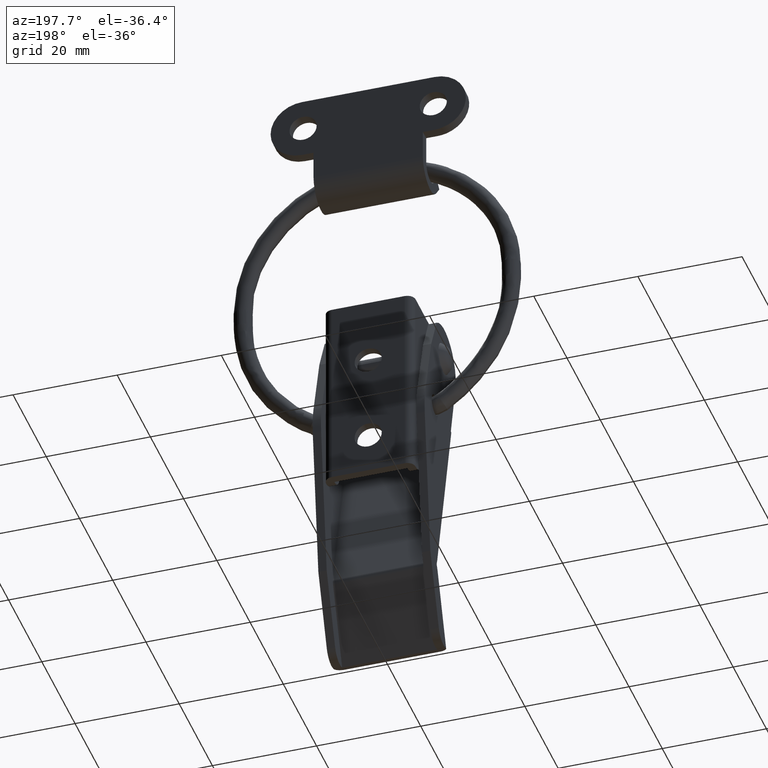
[diagram: clean part render]
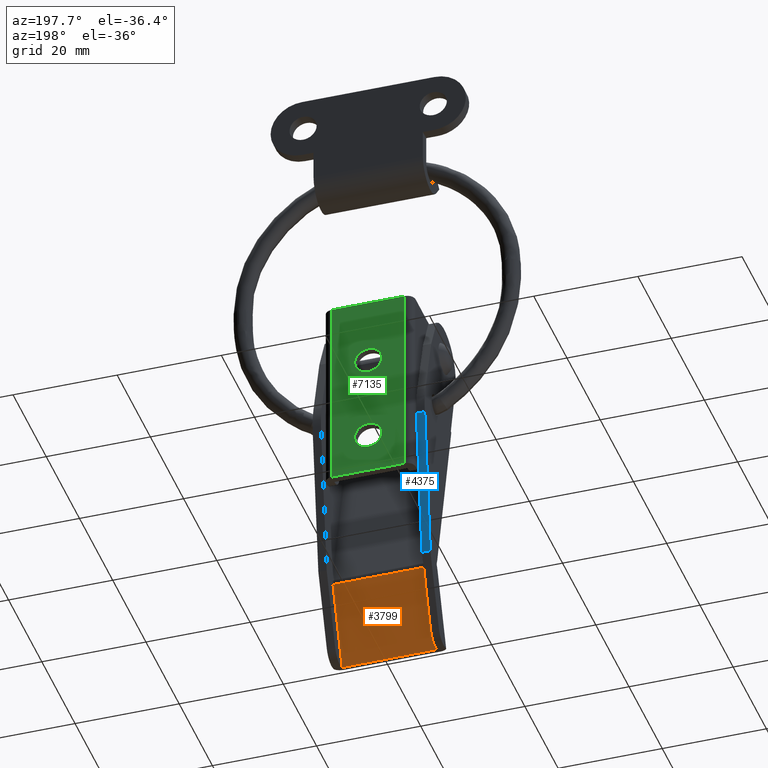
[diagram: same view with three faces highlighted in distinct colors, each labeled with its STEP entity id]
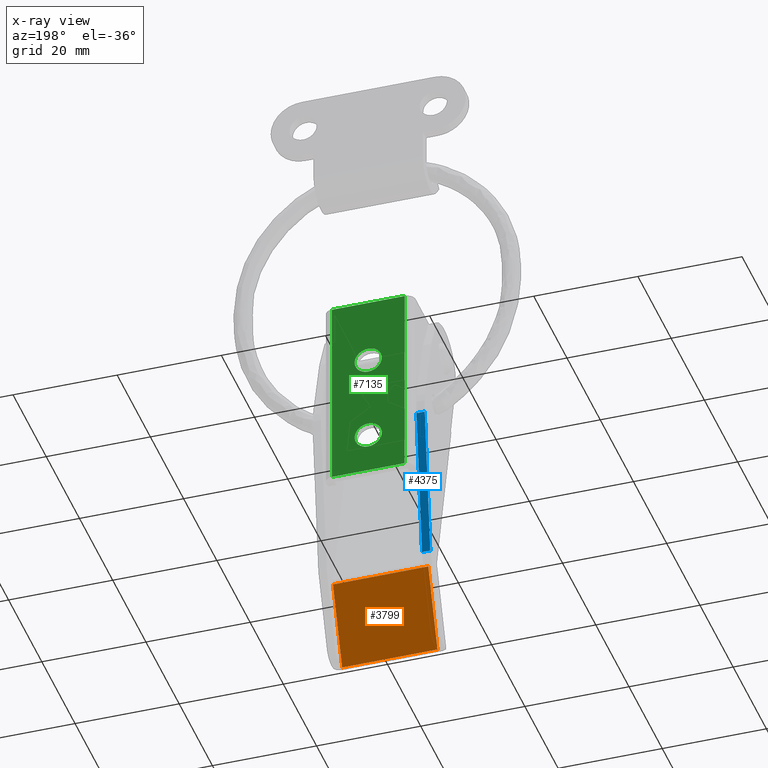
[diagram: x-ray of the same camera — body ghosted, the three highlighted faces saturated]
A machine part, auxiliary view with three faces highlighted in distinct colors.
The next image is the same camera in x-ray (body ghosted, the three faces saturated) — at least one of them is partly hidden behind the body in this view.
Their STEP definitions:

[orange] entity #3799 — the highlighted face is a freeform B-spline surface patch.
#3208=CARTESIAN_POINT('',(9.149996000000000,4.105346942063965,-49.670321217863602));
#3209=VERTEX_POINT('',#3208);
#3225=CARTESIAN_POINT('',(-9.150000000000000,4.105346942063965,-49.670321217863602));
#3226=VERTEX_POINT('',#3225);
#3227=CARTESIAN_POINT('',(-9.150000000000000,4.105346942063965,-49.670321217863602));
#3228=CARTESIAN_POINT('',(9.149996000000000,4.105346942063965,-49.670321217863602));
#3229=QUASI_UNIFORM_CURVE('',1,(#3227,#3228),.UNSPECIFIED.,.F.,.U.);
#3230=EDGE_CURVE('',#3226,#3209,#3229,.T.);
#3772=CARTESIAN_POINT('',(-10.064084421156521,-1.672689506783195,-65.428604668776018));
#3773=CARTESIAN_POINT('',(-10.064084421156521,4.380229205023377,-48.920642212947250));
#3774=CARTESIAN_POINT('',(10.064081239230090,-1.672689506783195,-65.428604668776018));
#3775=CARTESIAN_POINT('',(10.064081239230090,4.380229205023377,-48.920642212947250));
#3776=B_SPLINE_SURFACE_WITH_KNOTS('',1,1,((#3772,#3774),(#3773,#3775)),.UNSPECIFIED.,.F.,.F.,.U.,(2,2),(2,2),(0.0,17.582680380840412),(0.0,20.128165660386610),.UNSPECIFIED.);
#3777=CARTESIAN_POINT('',(-9.150000000000000,-1.397807834248284,-64.678927274108403));
#3778=VERTEX_POINT('',#3777);
#3779=CARTESIAN_POINT('',(-9.150000000000000,4.105346942063965,-49.670321217863602));
#3780=CARTESIAN_POINT('',(-9.150000000000000,-1.397807834248284,-64.678927274108403));
#3781=QUASI_UNIFORM_CURVE('',1,(#3779,#3780),.UNSPECIFIED.,.F.,.U.);
#3782=EDGE_CURVE('',#3226,#3778,#3781,.T.);
#3783=ORIENTED_EDGE('',*,*,#3782,.F.);
#3784=ORIENTED_EDGE('',*,*,#3230,.T.);
#3785=CARTESIAN_POINT('',(9.149996000000000,-1.397807834248284,-64.678927274108403));
#3786=VERTEX_POINT('',#3785);
#3787=CARTESIAN_POINT('',(9.149996000000000,4.105346942063965,-49.670321217863602));
#3788=CARTESIAN_POINT('',(9.149996000000000,-1.397807834248284,-64.678927274108403));
#3789=QUASI_UNIFORM_CURVE('',1,(#3787,#3788),.UNSPECIFIED.,.F.,.U.);
#3790=EDGE_CURVE('',#3209,#3786,#3789,.T.);
#3791=ORIENTED_EDGE('',*,*,#3790,.T.);
#3792=CARTESIAN_POINT('',(9.149996000000000,-1.397807834248284,-64.678927274108403));
#3793=CARTESIAN_POINT('',(-9.150000000000000,-1.397807834248284,-64.678927274108403));
#3794=QUASI_UNIFORM_CURVE('',1,(#3792,#3793),.UNSPECIFIED.,.F.,.U.);
#3795=EDGE_CURVE('',#3786,#3778,#3794,.T.);
#3796=ORIENTED_EDGE('',*,*,#3795,.T.);
#3797=EDGE_LOOP('',(#3783,#3784,#3791,#3796));
#3798=FACE_OUTER_BOUND('',#3797,.T.);
#3799=ADVANCED_FACE('',(#3798),#3776,.T.);

[blue] entity #4375 — the highlighted face is a freeform B-spline surface patch.
#4309=CARTESIAN_POINT('',(-9.150000000000000,11.278625000000000,-19.886108000000100));
#4310=VERTEX_POINT('',#4309);
#4324=CARTESIAN_POINT('',(-10.750000000000000,11.278625000000000,-19.886108000000100));
#4325=VERTEX_POINT('',#4324);
#4326=CARTESIAN_POINT('',(-9.150000000000000,11.278625000000000,-19.886108000000100));
#4327=CARTESIAN_POINT('',(-10.750000000000000,11.278625000000000,-19.886108000000100));
#4328=QUASI_UNIFORM_CURVE('',1,(#4326,#4327),.UNSPECIFIED.,.F.,.U.);
#4329=EDGE_CURVE('',#4310,#4325,#4328,.T.);
#4348=CARTESIAN_POINT('',(-10.829920014047859,11.446112903160440,-18.425472509886159));
#4349=CARTESIAN_POINT('',(-10.829920014047859,7.758025042267673,-50.588702920135042));
#4350=CARTESIAN_POINT('',(-9.070079599714042,11.446112903160440,-18.425472509886159));
#4351=CARTESIAN_POINT('',(-9.070079599714042,7.758025042267673,-50.588702920135042));
#4352=B_SPLINE_SURFACE_WITH_KNOTS('',1,1,((#4348,#4350),(#4349,#4351)),.UNSPECIFIED.,.F.,.F.,.U.,(2,2),(2,2),(0.0,32.373992378025036),(0.041708326016739,0.958291875148937),.UNSPECIFIED.);
#4353=CARTESIAN_POINT('',(-9.150000000000000,7.925512825511469,-49.128068475795097));
#4354=VERTEX_POINT('',#4353);
#4355=CARTESIAN_POINT('',(-9.150000000000000,7.925512825511469,-49.128068475795097));
#4356=CARTESIAN_POINT('',(-9.150000000000000,11.278625000000000,-19.886108000000100));
#4357=QUASI_UNIFORM_CURVE('',1,(#4355,#4356),.UNSPECIFIED.,.F.,.U.);
#4358=EDGE_CURVE('',#4354,#4310,#4357,.T.);
#4359=ORIENTED_EDGE('',*,*,#4358,.F.);
#4360=CARTESIAN_POINT('',(-10.750000000000000,7.925512825511469,-49.128068475795097));
#4361=VERTEX_POINT('',#4360);
#4362=CARTESIAN_POINT('',(-9.150000000000000,7.925512825511469,-49.128068475795097));
#4363=CARTESIAN_POINT('',(-10.750000000000000,7.925512825511469,-49.128068475795097));
#4364=QUASI_UNIFORM_CURVE('',1,(#4362,#4363),.UNSPECIFIED.,.F.,.U.);
#4365=EDGE_CURVE('',#4354,#4361,#4364,.T.);
#4366=ORIENTED_EDGE('',*,*,#4365,.T.);
#4367=CARTESIAN_POINT('',(-10.750000000000000,7.925512825511469,-49.128068475795097));
#4368=CARTESIAN_POINT('',(-10.750000000000000,11.278625000000000,-19.886108000000100));
#4369=QUASI_UNIFORM_CURVE('',1,(#4367,#4368),.UNSPECIFIED.,.F.,.U.);
#4370=EDGE_CURVE('',#4361,#4325,#4369,.T.);
#4371=ORIENTED_EDGE('',*,*,#4370,.T.);
#4372=ORIENTED_EDGE('',*,*,#4329,.F.);
#4373=EDGE_LOOP('',(#4359,#4366,#4371,#4372));
#4374=FACE_OUTER_BOUND('',#4373,.T.);
#4375=ADVANCED_FACE('',(#4374),#4352,.F.);

[green] entity #7135 — the highlighted face is a freeform B-spline surface patch.
#5655=CARTESIAN_POINT('',(-2.591985067688748,11.599990000000000,-5.796006350886809));
#5656=VERTEX_POINT('',#5655);
#5662=CARTESIAN_POINT('',(0.0,11.599990000000000,-3.400000000000091));
#5663=VERTEX_POINT('',#5662);
#5664=CARTESIAN_POINT('',(0.0,11.599990000000000,-3.400000000000091));
#5665=CARTESIAN_POINT('',(-2.403415277900442,11.599990000000000,-3.400000000000090));
#5666=CARTESIAN_POINT('',(-2.591985067688749,11.599989999999996,-5.796006350886808));
#5674=(BOUNDED_CURVE()B_SPLINE_CURVE(2,(#5664,#5665,#5666),.UNSPECIFIED.,.F.,.U.)B_SPLINE_CURVE_WITH_KNOTS((3,3),(0.0,0.236331300603550),.UNSPECIFIED.)CURVE()GEOMETRIC_REPRESENTATION_ITEM()RATIONAL_B_SPLINE_CURVE((1.0,0.723120658639427,0.969723356110842))REPRESENTATION_ITEM(''));
#5675=EDGE_CURVE('',#5663,#5656,#5674,.T.);
#5677=CARTESIAN_POINT('',(2.591985067688748,11.599990000000000,-6.203993649113373));
#5678=VERTEX_POINT('',#5677);
#5679=CARTESIAN_POINT('',(2.591985067688749,11.599990000000000,-6.203993649113373));
#5680=CARTESIAN_POINT('',(2.600000000000000,11.599990000000004,-6.102154278441942));
#5681=CARTESIAN_POINT('',(2.600000000000000,11.599990000000000,-6.000000000000091));
#5682=CARTESIAN_POINT('',(2.600000000000001,11.599990000000000,-3.400000000000091));
#5683=CARTESIAN_POINT('',(0.0,11.599990000000000,-3.400000000000091));
#5691=(BOUNDED_CURVE()B_SPLINE_CURVE(2,(#5679,#5680,#5681,#5682,#5683),.UNSPECIFIED.,.F.,.U.)B_SPLINE_CURVE_WITH_KNOTS((3,2,3),(0.736331300603550,0.750000000000000,1.0),.UNSPECIFIED.)CURVE()GEOMETRIC_REPRESENTATION_ITEM()RATIONAL_B_SPLINE_CURVE((0.969723356110842,0.983986122547121,1.0,0.707106781186548,1.0))REPRESENTATION_ITEM(''));
#5692=EDGE_CURVE('',#5678,#5663,#5691,.T.);
#5768=CARTESIAN_POINT('',(0.0,11.599990000000000,-8.600000000000090));
#5769=VERTEX_POINT('',#5768);
#5770=CARTESIAN_POINT('',(0.0,11.599990000000000,-8.600000000000090));
#5771=CARTESIAN_POINT('',(2.403415277900435,11.599989999999998,-8.600000000000090));
#5772=CARTESIAN_POINT('',(2.591985067688748,11.599989999999996,-6.203993649113373));
#5780=(BOUNDED_CURVE()B_SPLINE_CURVE(2,(#5770,#5771,#5772),.UNSPECIFIED.,.F.,.U.)B_SPLINE_CURVE_WITH_KNOTS((3,3),(0.500000000000000,0.736331300603549),.UNSPECIFIED.)CURVE()GEOMETRIC_REPRESENTATION_ITEM()RATIONAL_B_SPLINE_CURVE((1.0,0.723120658639427,0.969723356110841))REPRESENTATION_ITEM(''));
#5781=EDGE_CURVE('',#5769,#5678,#5780,.T.);
#5783=CARTESIAN_POINT('',(-2.591985067688749,11.599989999999996,-5.796006350886808));
#5784=CARTESIAN_POINT('',(-2.600000000000000,11.599990000000004,-5.897845721558239));
#5785=CARTESIAN_POINT('',(-2.600000000000000,11.599990000000000,-6.000000000000091));
#5786=CARTESIAN_POINT('',(-2.600000000000001,11.599990000000000,-8.600000000000090));
#5787=CARTESIAN_POINT('',(0.0,11.599990000000000,-8.600000000000090));
#5795=(BOUNDED_CURVE()B_SPLINE_CURVE(2,(#5783,#5784,#5785,#5786,#5787),.UNSPECIFIED.,.F.,.U.)B_SPLINE_CURVE_WITH_KNOTS((3,2,3),(0.236331300603550,0.250000000000000,0.500000000000000),.UNSPECIFIED.)CURVE()GEOMETRIC_REPRESENTATION_ITEM()RATIONAL_B_SPLINE_CURVE((0.969723356110842,0.983986122547121,1.0,0.707106781186548,1.0))REPRESENTATION_ITEM(''));
#5796=EDGE_CURVE('',#5656,#5769,#5795,.T.);
#5837=CARTESIAN_POINT('',(-2.591985067688748,11.599990000000000,-22.796006350886721));
#5838=VERTEX_POINT('',#5837);
#5844=CARTESIAN_POINT('',(0.0,11.599990000000000,-20.399999999999999));
#5845=VERTEX_POINT('',#5844);
#5846=CARTESIAN_POINT('',(0.0,11.599990000000000,-20.399999999999999));
#5847=CARTESIAN_POINT('',(-2.403415277900442,11.599990000000000,-20.400000000000009));
#5848=CARTESIAN_POINT('',(-2.591985067688749,11.599989999999996,-22.796006350886714));
#5856=(BOUNDED_CURVE()B_SPLINE_CURVE(2,(#5846,#5847,#5848),.UNSPECIFIED.,.F.,.U.)B_SPLINE_CURVE_WITH_KNOTS((3,3),(0.0,0.236331300603550),.UNSPECIFIED.)CURVE()GEOMETRIC_REPRESENTATION_ITEM()RATIONAL_B_SPLINE_CURVE((1.0,0.723120658639427,0.969723356110842))REPRESENTATION_ITEM(''));
#5857=EDGE_CURVE('',#5845,#5838,#5856,.T.);
#5859=CARTESIAN_POINT('',(2.591985067688748,11.599990000000000,-23.203993649113290));
#5860=VERTEX_POINT('',#5859);
#5861=CARTESIAN_POINT('',(2.591985067688748,11.599989999999996,-23.203993649113290));
#5862=CARTESIAN_POINT('',(2.600000000000000,11.599989999999998,-23.102154278441855));
#5863=CARTESIAN_POINT('',(2.600000000000000,11.599990000000000,-23.0));
#5864=CARTESIAN_POINT('',(2.600000000000001,11.599990000000000,-20.399999999999999));
#5865=CARTESIAN_POINT('',(0.0,11.599990000000000,-20.399999999999999));
#5873=(BOUNDED_CURVE()B_SPLINE_CURVE(2,(#5861,#5862,#5863,#5864,#5865),.UNSPECIFIED.,.F.,.U.)B_SPLINE_CURVE_WITH_KNOTS((3,2,3),(0.736331300603549,0.750000000000000,1.0),.UNSPECIFIED.)CURVE()GEOMETRIC_REPRESENTATION_ITEM()RATIONAL_B_SPLINE_CURVE((0.969723356110841,0.983986122547120,1.0,0.707106781186548,1.0))REPRESENTATION_ITEM(''));
#5874=EDGE_CURVE('',#5860,#5845,#5873,.T.);
#5950=CARTESIAN_POINT('',(0.0,11.599990000000000,-25.600000000000001));
#5951=VERTEX_POINT('',#5950);
#5952=CARTESIAN_POINT('',(0.0,11.599990000000000,-25.600000000000001));
#5953=CARTESIAN_POINT('',(2.403415277900435,11.599989999999998,-25.600000000000005));
#5954=CARTESIAN_POINT('',(2.591985067688748,11.599989999999996,-23.203993649113290));
#5962=(BOUNDED_CURVE()B_SPLINE_CURVE(2,(#5952,#5953,#5954),.UNSPECIFIED.,.F.,.U.)B_SPLINE_CURVE_WITH_KNOTS((3,3),(0.500000000000000,0.736331300603549),.UNSPECIFIED.)CURVE()GEOMETRIC_REPRESENTATION_ITEM()RATIONAL_B_SPLINE_CURVE((1.0,0.723120658639427,0.969723356110841))REPRESENTATION_ITEM(''));
#5963=EDGE_CURVE('',#5951,#5860,#5962,.T.);
#5965=CARTESIAN_POINT('',(-2.591985067688749,11.599990000000000,-22.796006350886721));
#5966=CARTESIAN_POINT('',(-2.600000000000000,11.599990000000004,-22.897845721558145));
#5967=CARTESIAN_POINT('',(-2.600000000000000,11.599990000000000,-23.0));
#5968=CARTESIAN_POINT('',(-2.600000000000001,11.599990000000000,-25.600000000000001));
#5969=CARTESIAN_POINT('',(0.0,11.599990000000000,-25.600000000000001));
#5977=(BOUNDED_CURVE()B_SPLINE_CURVE(2,(#5965,#5966,#5967,#5968,#5969),.UNSPECIFIED.,.F.,.U.)B_SPLINE_CURVE_WITH_KNOTS((3,2,3),(0.236331300603550,0.250000000000000,0.500000000000000),.UNSPECIFIED.)CURVE()GEOMETRIC_REPRESENTATION_ITEM()RATIONAL_B_SPLINE_CURVE((0.969723356110842,0.983986122547121,1.0,0.707106781186548,1.0))REPRESENTATION_ITEM(''));
#5978=EDGE_CURVE('',#5838,#5951,#5977,.T.);
#6364=CARTESIAN_POINT('',(6.999999000000000,11.599990000000000,7.0));
#6365=VERTEX_POINT('',#6364);
#6386=CARTESIAN_POINT('',(6.999999000000000,11.599990000000000,-30.999984000000101));
#6387=VERTEX_POINT('',#6386);
#6401=CARTESIAN_POINT('',(6.999999000000000,11.599990000000000,7.0));
#6402=CARTESIAN_POINT('',(6.999999000000000,11.599990000000000,-30.999984000000101));
#6403=QUASI_UNIFORM_CURVE('',1,(#6401,#6402),.UNSPECIFIED.,.F.,.U.);
#6404=EDGE_CURVE('',#6365,#6387,#6403,.T.);
#6423=CARTESIAN_POINT('',(-6.999998000000001,11.599990000000000,7.0));
#6424=VERTEX_POINT('',#6423);
#6440=CARTESIAN_POINT('',(-6.999998000000001,11.599990000000000,-30.999984000000101));
#6441=VERTEX_POINT('',#6440);
#6442=CARTESIAN_POINT('',(-6.999998000000001,11.599990000000000,-30.999984000000101));
#6443=CARTESIAN_POINT('',(-6.999998000000001,11.599990000000000,7.0));
#6444=QUASI_UNIFORM_CURVE('',1,(#6442,#6443),.UNSPECIFIED.,.F.,.U.);
#6445=EDGE_CURVE('',#6441,#6424,#6444,.T.);
#6936=CARTESIAN_POINT('',(6.999999000000000,11.599990000000000,-30.999984000000101));
#6937=CARTESIAN_POINT('',(-6.999998000000001,11.599990000000000,-30.999984000000101));
#6938=QUASI_UNIFORM_CURVE('',1,(#6936,#6937),.UNSPECIFIED.,.F.,.U.);
#6939=EDGE_CURVE('',#6387,#6441,#6938,.T.);
#6956=CARTESIAN_POINT('',(6.999999000000000,11.599990000000000,7.0));
#6957=CARTESIAN_POINT('',(-6.999998000000001,11.599990000000000,7.0));
#6958=QUASI_UNIFORM_CURVE('',1,(#6956,#6957),.UNSPECIFIED.,.F.,.U.);
#6959=EDGE_CURVE('',#6365,#6424,#6958,.T.);
#7112=CARTESIAN_POINT('',(-7.699297954437244,11.599990000000000,-32.898084197298758));
#7113=CARTESIAN_POINT('',(-7.699297954437244,11.599990000000000,8.898100197298644));
#7114=CARTESIAN_POINT('',(7.699299204776701,11.599990000000000,-32.898084197298758));
#7115=CARTESIAN_POINT('',(7.699299204776701,11.599990000000000,8.898100197298644));
#7116=B_SPLINE_SURFACE_WITH_KNOTS('',1,1,((#7112,#7114),(#7113,#7115)),.UNSPECIFIED.,.F.,.F.,.U.,(2,2),(2,2),(0.0,41.796184394597397),(0.0,15.398597159213949),.UNSPECIFIED.);
#7117=ORIENTED_EDGE('',*,*,#6939,.T.);
#7118=ORIENTED_EDGE('',*,*,#6445,.T.);
#7119=ORIENTED_EDGE('',*,*,#6959,.F.);
#7120=ORIENTED_EDGE('',*,*,#6404,.T.);
#7121=EDGE_LOOP('',(#7117,#7118,#7119,#7120));
#7122=FACE_OUTER_BOUND('',#7121,.T.);
#7123=ORIENTED_EDGE('',*,*,#5963,.T.);
#7124=ORIENTED_EDGE('',*,*,#5874,.T.);
#7125=ORIENTED_EDGE('',*,*,#5857,.T.);
#7126=ORIENTED_EDGE('',*,*,#5978,.T.);
#7127=EDGE_LOOP('',(#7123,#7124,#7125,#7126));
#7128=FACE_BOUND('',#7127,.T.);
#7129=ORIENTED_EDGE('',*,*,#5781,.T.);
#7130=ORIENTED_EDGE('',*,*,#5692,.T.);
#7131=ORIENTED_EDGE('',*,*,#5675,.T.);
#7132=ORIENTED_EDGE('',*,*,#5796,.T.);
#7133=EDGE_LOOP('',(#7129,#7130,#7131,#7132));
#7134=FACE_BOUND('',#7133,.T.);
#7135=ADVANCED_FACE('',(#7122,#7128,#7134),#7116,.T.);